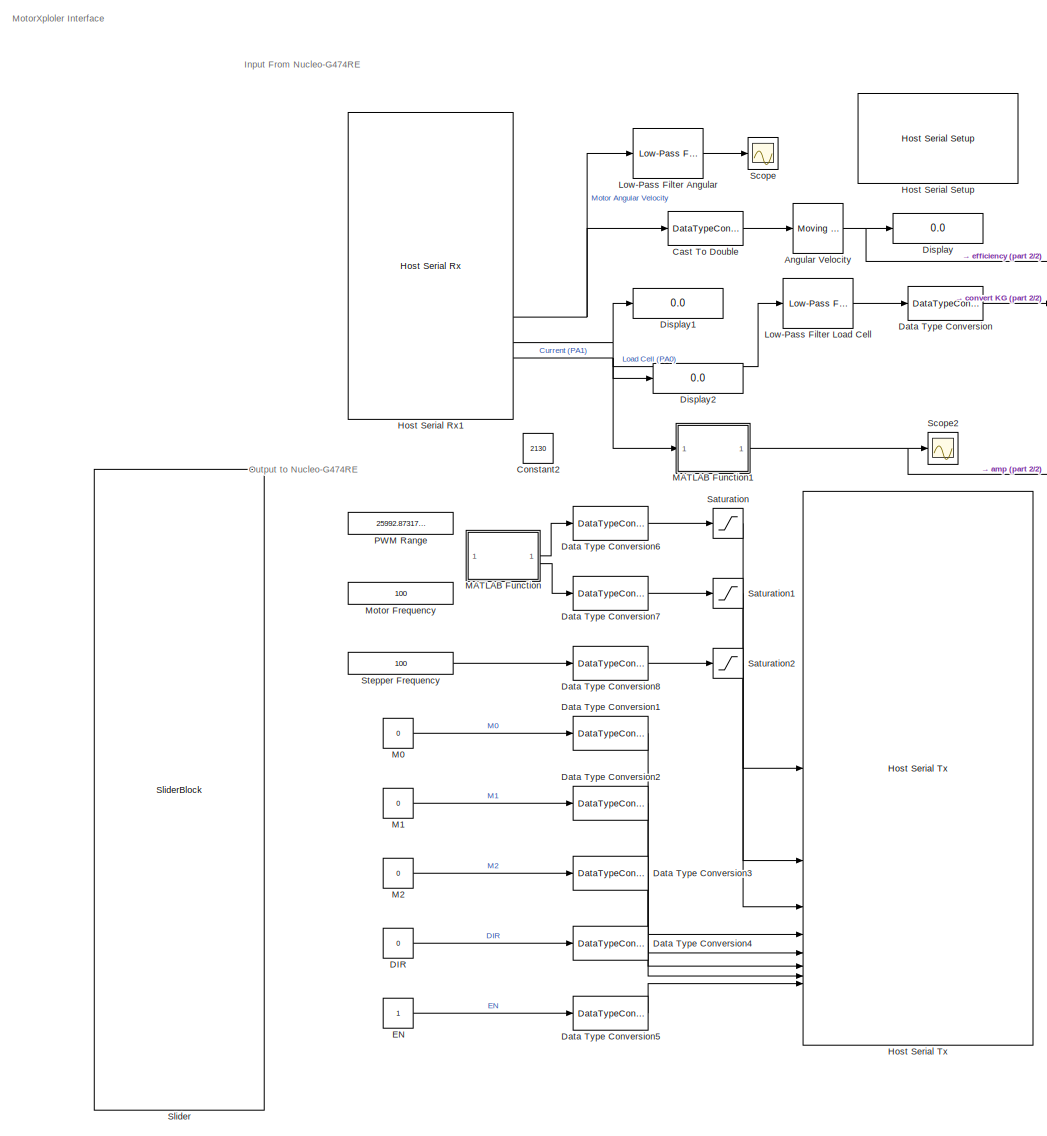
[diagram: root canvas - part 1/2, left side, full height]
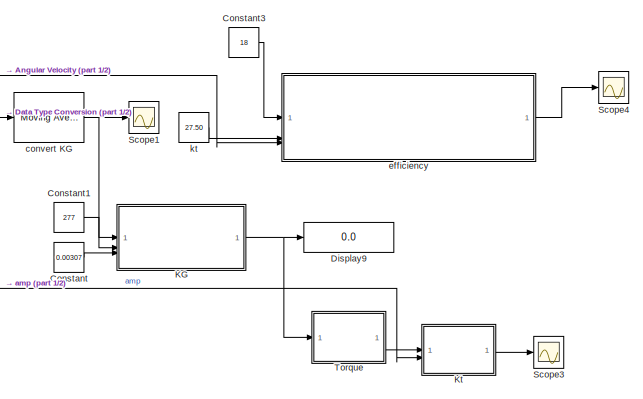
[diagram: root canvas - part 2/2, middle right region]
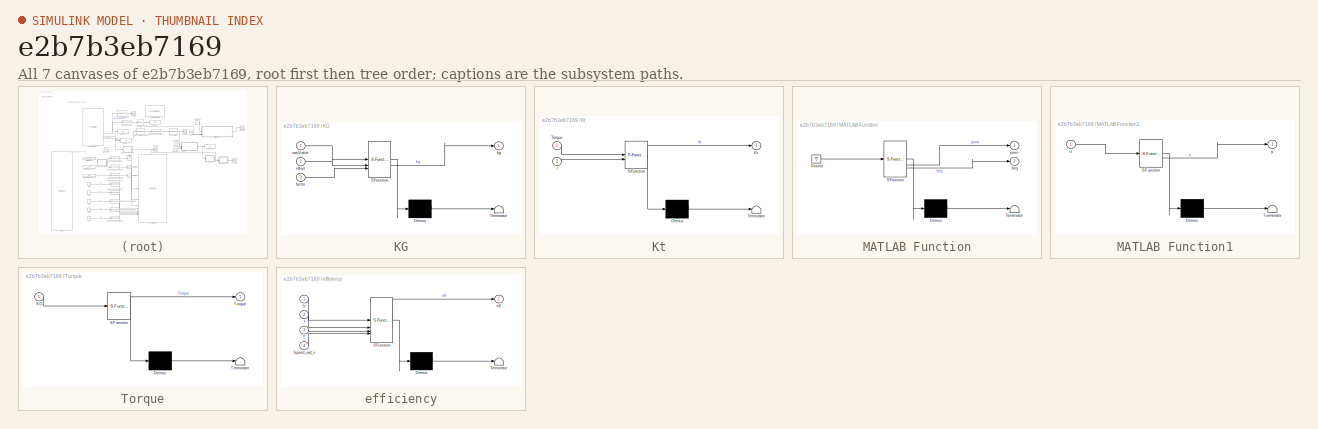
[diagram: thumbnail index - all 7 canvases of the model, root first then tree order]
MODEL slx_e2b7b3eb7169
KIND model
CONFIG AbsTol = auto
CONFIG EnableMultiTasking = off
CONFIG FixedStep = 0.001
CONFIG MaxStep = auto
CONFIG MinStep = auto
CONFIG RelTol = 1e-3
CONFIG SampleTimeConstraint = Unconstrained
CONFIG SolverName = FixedStepAuto
CONFIG StartTime = 0.0
CONFIG StopTime = inf
BLOCK [Reference] Angular Velocity  REF=dspstat3/Moving
Average
  SourceBlock = dspstat3/Moving\nAverage
  SourceType = dsp.simulink.MovingAverage
BLOCK [DataTypeConversion] Cast To Double
  OutDataTypeStr = double
  RndMeth = Floor
  SaturateOnIntegerOverflow = off
BLOCK [Constant] Constant
  Value = 0.00307
BLOCK [Constant] Constant1
  Value = 277
BLOCK [Constant] Constant2
  Commented = on
  Value = 2130
BLOCK [Constant] Constant3
  Commented = on
  Value = 18
BLOCK [Constant] DIR
  Value = 0
BLOCK [DataTypeConversion] Data Type Conversion
  RndMeth = Floor
  SaturateOnIntegerOverflow = off
BLOCK [DataTypeConversion] Data Type Conversion1
  RndMeth = Floor
  SaturateOnIntegerOverflow = off
BLOCK [DataTypeConversion] Data Type Conversion2
  RndMeth = Floor
  SaturateOnIntegerOverflow = off
BLOCK [DataTypeConversion] Data Type Conversion3
  RndMeth = Floor
  SaturateOnIntegerOverflow = off
BLOCK [DataTypeConversion] Data Type Conversion4
  RndMeth = Floor
  SaturateOnIntegerOverflow = off
BLOCK [DataTypeConversion] Data Type Conversion5
  RndMeth = Floor
  SaturateOnIntegerOverflow = off
BLOCK [DataTypeConversion] Data Type Conversion6
  RndMeth = Floor
  SaturateOnIntegerOverflow = off
BLOCK [DataTypeConversion] Data Type Conversion7
  RndMeth = Floor
  SaturateOnIntegerOverflow = off
BLOCK [DataTypeConversion] Data Type Conversion8
  RndMeth = Floor
  SaturateOnIntegerOverflow = off
BLOCK [Display] Display
  Decimation = 1
BLOCK [Display] Display1
  Decimation = 1
BLOCK [Display] Display2
  Decimation = 1
BLOCK [Display] Display9
  Decimation = 1
BLOCK [Constant] EN
BLOCK [Reference] Host Serial Rx1  REF=amg_usbconverter_n_connect_lib/Host Serial Rx
  SourceBlock = amg_usbconverter_n_connect_lib/Host Serial Rx
  SourceProductName = aMG USB Converter N
  SourceType = amg_usbconverter_n_connect
BLOCK [Reference] Host Serial Setup  REF=amg_usbconverter_n_connect_lib/Host Serial Setup
  SourceBlock = amg_usbconverter_n_connect_lib/Host Serial Setup
  SourceProductName = aMG USB Converter N
  SourceType = amg_usbconverter_n_connect
BLOCK [Reference] Host Serial Tx  REF=amg_usbconverter_n_connect_lib/Host Serial Tx
  SourceBlock = amg_usbconverter_n_connect_lib/Host Serial Tx
  SourceProductName = aMG USB Converter N
  SourceType = amg_usbconverter_n_connect
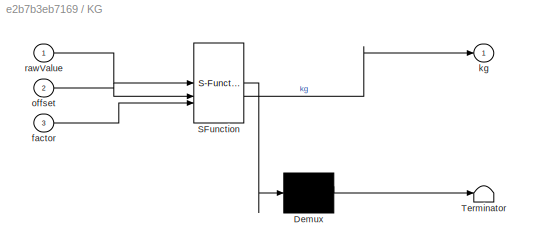
BLOCK [SubSystem] KG
  ErrorFcn = Stateflow.Translate.translate
  PermitHierarchicalResolution = ExplicitOnly
  SFBlockType = MATLAB Function
  TreatAsAtomicUnit = on
BLOCK [Demux] KG/ Demux 
  Outputs = 1
BLOCK [S-Function] KG/ SFunction 
  EnableBusSupport = off
  FunctionName = sf_sfun
  PortCounts = [3 2]
  SFcnIsStateOwnerBlock = off
  SFunctionDeploymentMode = off
  Tag = Stateflow S-Function 4
BLOCK [Terminator] KG/ Terminator 
BLOCK [Inport] KG/factor
  Port = 3
BLOCK [Outport] KG/kg
BLOCK [Inport] KG/offset
  Port = 2
BLOCK [Inport] KG/rawValue
BLOCK [SubSystem] Kt
  ErrorFcn = Stateflow.Translate.translate
  PermitHierarchicalResolution = ExplicitOnly
  SFBlockType = MATLAB Function
  TreatAsAtomicUnit = on
BLOCK [Demux] Kt/ Demux 
  Outputs = 1
BLOCK [S-Function] Kt/ SFunction 
  EnableBusSupport = off
  FunctionName = sf_sfun
  PortCounts = [2 2]
  SFcnIsStateOwnerBlock = off
  SFunctionDeploymentMode = off
  Tag = Stateflow S-Function 1
BLOCK [Terminator] Kt/ Terminator 
BLOCK [Inport] Kt/I
  Port = 2
BLOCK [Outport] Kt/Kt
BLOCK [Inport] Kt/Torque
BLOCK [Reference] Low-Pass Filter Angular  REF=eeGeneralControl/Low-Pass Filter
(Discrete or Continuous)
  LibrarySourceBlock = ee_sl_lib/General Control/Low-Pass Filter\n(Discrete or Continuous)
  SourceBlock = eeGeneralControl/Low-Pass Filter\n(Discrete or Continuous)
  SourceType = Low-Pass Filter (Discrete or Continuous)
BLOCK [Reference] Low-Pass Filter Load Cell  REF=eeGeneralControl/Low-Pass Filter
(Discrete or Continuous)
  LibrarySourceBlock = ee_sl_lib/General Control/Low-Pass Filter\n(Discrete or Continuous)
  SourceBlock = eeGeneralControl/Low-Pass Filter\n(Discrete or Continuous)
  SourceType = Low-Pass Filter (Discrete or Continuous)
BLOCK [Constant] M0
  Value = 0
BLOCK [Constant] M1
  Value = 0
BLOCK [Constant] M2
  Value = 0
BLOCK [SubSystem] MATLAB Function
  Commented = on
  ErrorFcn = Stateflow.Translate.translate
  PermitHierarchicalResolution = ExplicitOnly
  SFBlockType = MATLAB Function
  TreatAsAtomicUnit = on
BLOCK [Demux] MATLAB Function/ Demux 
  Outputs = 1
BLOCK [Ground] MATLAB Function/ Ground 
BLOCK [S-Function] MATLAB Function/ SFunction 
  EnableBusSupport = off
  FunctionName = sf_sfun
  PortCounts = [1 3]
  SFcnIsStateOwnerBlock = off
  SFunctionDeploymentMode = off
  Tag = Stateflow S-Function 5
BLOCK [Terminator] MATLAB Function/ Terminator 
BLOCK [Outport] MATLAB Function/freq
  Port = 2
BLOCK [Outport] MATLAB Function/pwm
BLOCK [SubSystem] MATLAB Function1
  ErrorFcn = Stateflow.Translate.translate
  PermitHierarchicalResolution = ExplicitOnly
  SFBlockType = MATLAB Function
  TreatAsAtomicUnit = on
BLOCK [Demux] MATLAB Function1/ Demux 
  Outputs = 1
BLOCK [S-Function] MATLAB Function1/ SFunction 
  EnableBusSupport = off
  FunctionName = sf_sfun
  PortCounts = [1 2]
  SFcnIsStateOwnerBlock = off
  SFunctionDeploymentMode = off
  Tag = Stateflow S-Function 6
BLOCK [Terminator] MATLAB Function1/ Terminator 
BLOCK [Inport] MATLAB Function1/u
BLOCK [Outport] MATLAB Function1/y
BLOCK [Constant] Motor Frequency
  Commented = on
  OutDataTypeStr = single
  Value = 100
BLOCK [Constant] PWM Range
  OutDataTypeStr = single
  Value = 25992.87317900608
BLOCK [Saturate] Saturation
  LowerLimit = -65535
  UpperLimit = 65535
BLOCK [Saturate] Saturation1
  LowerLimit = 0
  UpperLimit = 20000
BLOCK [Saturate] Saturation2
  LowerLimit = 0
  UpperLimit = inf
BLOCK [Scope] Scope
  ActiveDisplayYMaximum = 160.57332562263713
  ActiveDisplayYMinimum = -18.947306432810066
  Floating = off
  GraphicalSettings = {"AxesScalingProperties":{"AlignXAxis":"Center","AlignYAxis":"Center","AutoScaleXAxisLimits":false,"AxesScaling":"Manual","AxesScalingNumUpdates":10,"ExpandOnly":true,"ScaleAxesLimitsAtStop":false,"XAxisDataRange":100,"YAxisDataRange":80},"DisplayProperties":{"ColorOrder":["auto","auto","auto","auto","auto","auto","auto","auto","auto","auto","auto","auto","auto","auto","auto","auto","auto","auto",...<+1976ch>
  MultipleDisplayCache = [{"MaxYLimMag":0.84594720415771008,"MaxYLimReal":160.57332562263713,"MinYLimMag":0,"MinYLimReal":-18.947306432810066,"PlotAsMagnitudePhase":false,"ShowGrid":true,"ShowLegend":false,"Title":"%<SignalLabel>","YLabel":""}]
  NumInputPorts = 1
  ScopeFrameLocation = window
  WasSavedAsWebScope = on
  WindowPosition = [451.000000,247.000000,560.000000,420.000000,]
BLOCK [Scope] Scope1
  ActiveDisplayYMaximum = 412.34669028244855
  ActiveDisplayYMinimum = -71.560299650587439
  DataLoggingVariableName = ScopeData1
  Floating = off
  GraphicalSettings = {"AxesScalingProperties":{"AlignXAxis":"Center","AlignYAxis":"Center","AutoScaleXAxisLimits":false,"AxesScaling":"Manual","AxesScalingNumUpdates":10,"ExpandOnly":true,"ScaleAxesLimitsAtStop":false,"XAxisDataRange":100,"YAxisDataRange":80},"DisplayProperties":{"ColorOrder":["auto","auto","auto","auto","auto","auto","auto","auto","auto","auto","auto","auto","auto","auto","auto","auto","auto","auto",...<+1920ch>
  MultipleDisplayCache = [{"MaxYLimMag":1707.280102386283,"MaxYLimReal":412.34669028244855,"MinYLimMag":0,"MinYLimReal":-71.560299650587439,"PlotAsMagnitudePhase":false,"ShowGrid":true,"ShowLegend":false,"Title":"%<SignalLabel>","YLabel":""}]
  NumInputPorts = 1
  ScopeFrameLocation = window
  WasSavedAsWebScope = on
  WindowPosition = [488.000000,222.000000,560.000000,420.000000,]
BLOCK [Scope] Scope2
  ActiveDisplayYMaximum = 1.8023295791864395
  ActiveDisplayYMinimum = -0.341703286576271
  DataLoggingVariableName = ScopeData2
  Floating = off
  GraphicalSettings = {"AxesScalingProperties":{"AlignXAxis":"Center","AlignYAxis":"Center","AutoScaleXAxisLimits":false,"AxesScaling":"Manual","AxesScalingNumUpdates":10,"ExpandOnly":true,"ScaleAxesLimitsAtStop":false,"XAxisDataRange":100,"YAxisDataRange":80},"DisplayProperties":{"ColorOrder":["auto","auto","auto","auto","auto","auto","auto","auto","auto","auto","auto","auto","auto","auto","auto","auto","auto","auto",...<+2031ch>
  MultipleDisplayCache = [{"MaxYLimMag":1.8023295791864395,"MaxYLimReal":1.8023295791864395,"MinYLimMag":0,"MinYLimReal":-0.341703286576271,"PlotAsMagnitudePhase":false,"ShowGrid":true,"ShowLegend":false,"Title":"%<SignalLabel>","YLabel":""}]
  NumInputPorts = 1
  ScopeFrameLocation = window
  WasSavedAsWebScope = on
  WindowPosition = [779.000000,242.000000,560.000000,420.000000,]
BLOCK [Scope] Scope3
  DataLoggingVariableName = ScopeData3
  Floating = off
  GraphicalSettings = {"GraphicalSettings":{"LegacySettings":true,"Style":{"Style":{"PlotType":"Auto"}}}}
  NumInputPorts = 1
  WasSavedAsWebScope = on
BLOCK [Scope] Scope4
  Commented = on
  DataLoggingVariableName = ScopeData4
  Floating = off
  GraphicalSettings = {"GraphicalSettings":{"LegacySettings":true,"Style":{"Style":{"PlotType":"Auto"}}}}
  NumInputPorts = 1
  WasSavedAsWebScope = on
BLOCK [SliderBlock] Slider
  NameLocation = left
  ScaleMax = 65535
  ScaleMin = -65535
BLOCK [Constant] Stepper Frequency
  OutDataTypeStr = single
  Value = 100
BLOCK [SubSystem] Torque
  ErrorFcn = Stateflow.Translate.translate
  PermitHierarchicalResolution = ExplicitOnly
  SFBlockType = MATLAB Function
  TreatAsAtomicUnit = on
BLOCK [Demux] Torque/ Demux 
  Outputs = 1
BLOCK [S-Function] Torque/ SFunction 
  EnableBusSupport = off
  FunctionName = sf_sfun
  PortCounts = [1 2]
  SFcnIsStateOwnerBlock = off
  SFunctionDeploymentMode = off
  Tag = Stateflow S-Function 2
BLOCK [Terminator] Torque/ Terminator 
BLOCK [Inport] Torque/KG
BLOCK [Outport] Torque/Torque
BLOCK [Reference] convert KG  REF=eeGeneralControl/Moving Average
  LibrarySourceBlock = ee_sl_lib/General Control/Moving Average
  SourceBlock = eeGeneralControl/Moving Average
  SourceType = Moving Average
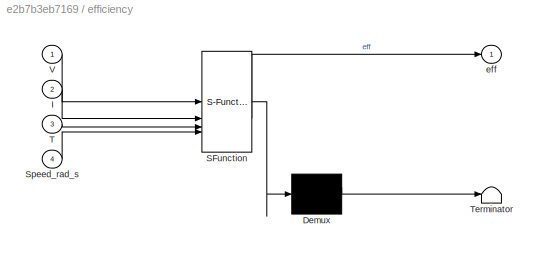
BLOCK [SubSystem] efficiency
  Commented = on
  ErrorFcn = Stateflow.Translate.translate
  PermitHierarchicalResolution = ExplicitOnly
  SFBlockType = MATLAB Function
  TreatAsAtomicUnit = on
BLOCK [Demux] efficiency/ Demux 
  Outputs = 1
BLOCK [S-Function] efficiency/ SFunction 
  EnableBusSupport = off
  FunctionName = sf_sfun
  PortCounts = [4 2]
  SFcnIsStateOwnerBlock = off
  SFunctionDeploymentMode = off
  Tag = Stateflow S-Function 3
BLOCK [Terminator] efficiency/ Terminator 
BLOCK [Inport] efficiency/I
  Port = 2
BLOCK [Inport] efficiency/Speed_rad_s
  Port = 4
BLOCK [Inport] efficiency/T
  Port = 3
BLOCK [Inport] efficiency/V
BLOCK [Outport] efficiency/eff
BLOCK [Constant] kt
  Value = 27.50
ANNOTATION (root): Input From Nucleo-G474RE
ANNOTATION (root): MotorXploler Interface
ANNOTATION (root): Output to Nucleo-G474RE
NET Angular Velocity:1 -> Display:1, efficiency:4
LINE Cast To Double:1 -> Angular Velocity:1
LINE Constant1:1 -> KG:2
LINE Constant3:1 -> efficiency:1
LINE Constant:1 -> KG:3
LINE DIR:1 -> Data Type Conversion4:1
LINE Data Type Conversion1:1 -> Host Serial Tx:4
LINE Data Type Conversion2:1 -> Host Serial Tx:5
LINE Data Type Conversion3:1 -> Host Serial Tx:6
LINE Data Type Conversion4:1 -> Host Serial Tx:7
LINE Data Type Conversion5:1 -> Host Serial Tx:8
LINE Data Type Conversion6:1 -> Saturation:1
LINE Data Type Conversion7:1 -> Saturation1:1
LINE Data Type Conversion8:1 -> Saturation2:1
LINE Data Type Conversion:1 -> convert KG:1
LINE EN:1 -> Data Type Conversion5:1
NET Host Serial Rx1:2 -> Cast To Double:1, Low-Pass Filter Angular:1
NET Host Serial Rx1:3 -> Display1:1, Low-Pass Filter Load Cell:1
NET Host Serial Rx1:4 -> Display2:1, MATLAB Function1:1
NET KG:1 -> Display9:1, Torque:1
LINE Kt:1 -> Scope3:1
LINE Low-Pass Filter Angular:1 -> Scope:1
LINE Low-Pass Filter Load Cell:1 -> Data Type Conversion:1
LINE M0:1 -> Data Type Conversion1:1
LINE M1:1 -> Data Type Conversion2:1
LINE M2:1 -> Data Type Conversion3:1
NET MATLAB Function1:1 -> Kt:2, Scope2:1
LINE MATLAB Function:1 -> Data Type Conversion6:1
LINE MATLAB Function:2 -> Data Type Conversion7:1
LINE Saturation1:1 -> Host Serial Tx:2
LINE Saturation2:1 -> Host Serial Tx:3
LINE Saturation:1 -> Host Serial Tx:1
LINE Stepper Frequency:1 -> Data Type Conversion8:1
LINE Torque:1 -> Kt:1
NET convert KG:1 -> KG:1, Scope1:1
LINE efficiency:1 -> Scope4:1
LINE kt:1 -> efficiency:3
note: NET lines group one-source signal fan-out (src -> all destinations, sorted); 1:1 wires keep LINE
CHART Kt states=1 transitions=1
  STATE_LABEL 'eML_blk_kernel()'
  STATE_LABEL 'SCRIPT:\nfunction Kt = fcn(Torque,I)\n\nKt = Torque/I;\n'
CHART Torque states=1 transitions=1
  STATE_LABEL 'eML_blk_kernel()'
  STATE_LABEL 'SCRIPT:\nfunction Torque = fcn(KG)\n\nTorque = KG * 9.81 * 110.5;\n'
CHART efficiency states=1 transitions=1
  STATE_LABEL 'eML_blk_kernel()'
  STATE_LABEL 'SCRIPT:\nfunction eff  = calculate_efficiency(V, I, T, Speed_rad_s)\n    % calculate_efficiency คำนวณค่าประสิทธิภาพมอเตอร์\n    % Inputs:\n    %   V           : แรงดันไฟฟ้า (Volts) -> 24V\n    %   I           : กระแสไฟฟ้า (Amps) -> จาก WCS1600\n    %   T           : แรงบิด (N.m) -> จาก Load Cell\n    %   Speed_rad_s : ความเร็วเชิงมุม (rad/s) -> จาก Encoder\n    % Outputs:\n    %   eff   : ประสิทธิภาพ (%)\n ...<+374ch>'
CHART KG states=1 transitions=1
  STATE_LABEL 'eML_blk_kernel()'
  STATE_LABEL 'SCRIPT:\nfunction kg = convertToKg(rawValue, offset, factor)\n% This function converts a raw ADC value to kilograms\n%\n% Inputs:\n%   rawValue = ค่าดิบที่อ่านได้จากเซ็นเซอร์\n%   offset   = ค่าดิบที่อ่านได้ตอนน้ำหนักเป็น 0 (ค่า Tare)\n%   factor   = ค่าตัวคูณสำหรับแปลงค่า (ที่คำนวณไว้)\n\n% คำนวณน้ำหนัก\nweight = (rawValue - offset) * factor;\n\n% (ทางเลือก) ป้องกันน้ำหนักติดลบ หากค่าสั่นไหว\nif weight < 0\n  ...<+40ch>'
CHART MATLAB Function states=1 transitions=1
  STATE_LABEL 'eML_blk_kernel()'
  STATE_LABEL 'SCRIPT:\nfunction [pwm, freq] = fcn()\n\npersistent freqList pwmStep sampleCount freqIndex pwmIndex roundCount;\n\n% Initialize\nif isempty(freqList)\n    freqList = [80000 80000 80000];\n    pwmStep = 0:0.05:1.0; \n    %pwmStep = 0:0.1:1.0; \n    sampleCount = 0;\n    freqIndex = 1;\n    pwmIndex = 1;\n    roundCount = 1;\nend\n\n% Stop after 4 rounds\nif roundCount > 1\n    pwm = 0;\n    freq = 0;\n    return;\nend\n...<+454ch>'
CHART MATLAB Function1 states=1 transitions=1
  STATE_LABEL 'eML_blk_kernel()'
  STATE_LABEL 'SCRIPT:\nfunction y = fcn(u)\n\ny = (u - 2112.2) * 1/29.469;\n'
CHART  states=0 transitions=0
CHART  states=0 transitions=0
CHART  states=0 transitions=0
CHART  states=0 transitions=0
CHART  states=0 transitions=0
CHART  states=0 transitions=0
